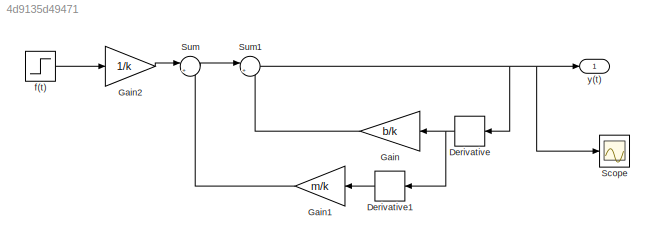
MODEL slx_4d9135d49471
KIND model
CONFIG AbsTol = auto
CONFIG EnableMultiTasking = off
CONFIG FixedStep = auto
CONFIG MaxStep = auto
CONFIG MinStep = auto
CONFIG RelTol = 1e-3
CONFIG SampleTimeConstraint = Unconstrained
CONFIG SolverName = VariableStepAuto
CONFIG StartTime = 0.0
CONFIG StopTime = 0.3
BLOCK [Derivative] Derivative
BLOCK [Derivative] Derivative1
BLOCK [Gain] Gain
  Gain = b/k
BLOCK [Gain] Gain1
  Gain = m/k
BLOCK [Gain] Gain2
  Gain = 1/k
BLOCK [Scope] Scope
  Floating = off
  NumInputPorts = 1
  ScopeSpecificationString = Simulink.scopes.TimeScopeBlockCfg('CurrentConfiguration', extmgr.ConfigurationSet(extmgr.Configuration('Core','General UI',true),extmgr.Configuration('Core','Source UI',true),extmgr.Configuration('Sources','WiredSimulink',true),extmgr.Configuration('Visuals','Time Domain',true,'SerializedDisplays',{struct('MinYLimReal','-0.00022','MaxYLimReal','0.00195','YLabelReal','','MinYLimMag','0.00000','MaxY...<+1324ch>
BLOCK [Sum] Sum
  Inputs = |+-
BLOCK [Sum] Sum1
  Inputs = |+-
BLOCK [Step] f(t)
  After = f_final
  Before = f_inicial
  SampleTime = 0
  Time = t_inicial
BLOCK [Outport] y(t)
LINE Derivative1:1 -> Gain1:1
NET Derivative:1 -> Derivative1:1, Gain:1
LINE Gain1:1 -> Sum:2
LINE Gain2:1 -> Sum:1
LINE Gain:1 -> Sum1:2
NET Sum1:1 -> Derivative:1, Scope:1, y(t):1
LINE Sum:1 -> Sum1:1
LINE f(t):1 -> Gain2:1
note: NET lines group one-source signal fan-out (src -> all destinations, sorted); 1:1 wires keep LINE
